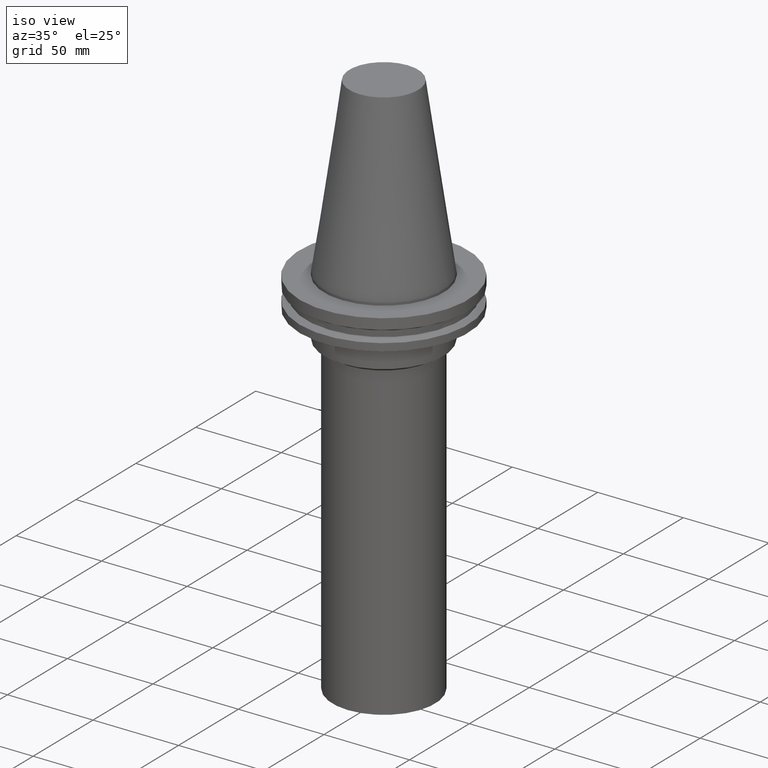
[diagram: clean part render]
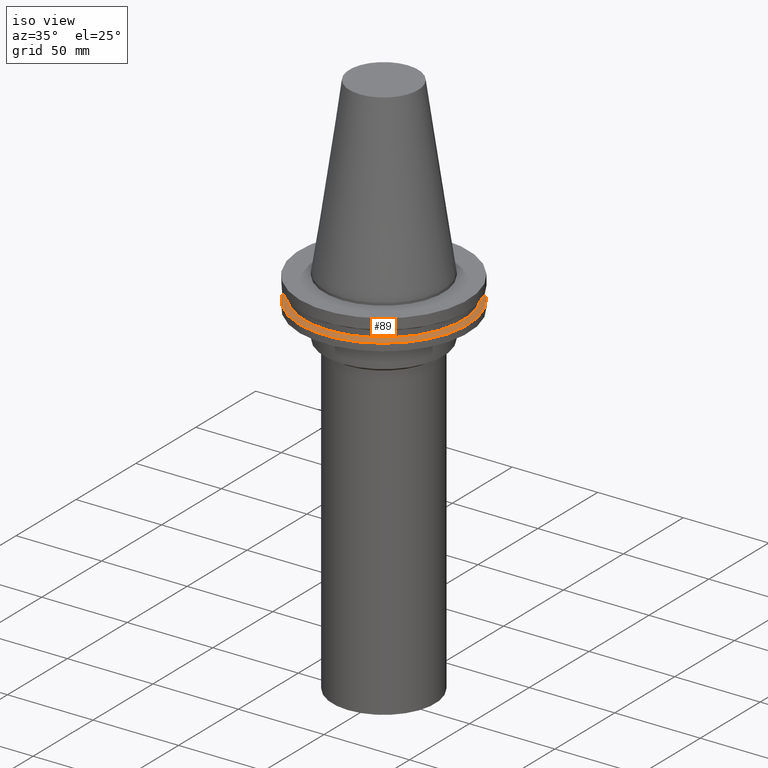
[diagram: same view with one face highlighted and labeled with its STEP entity id]
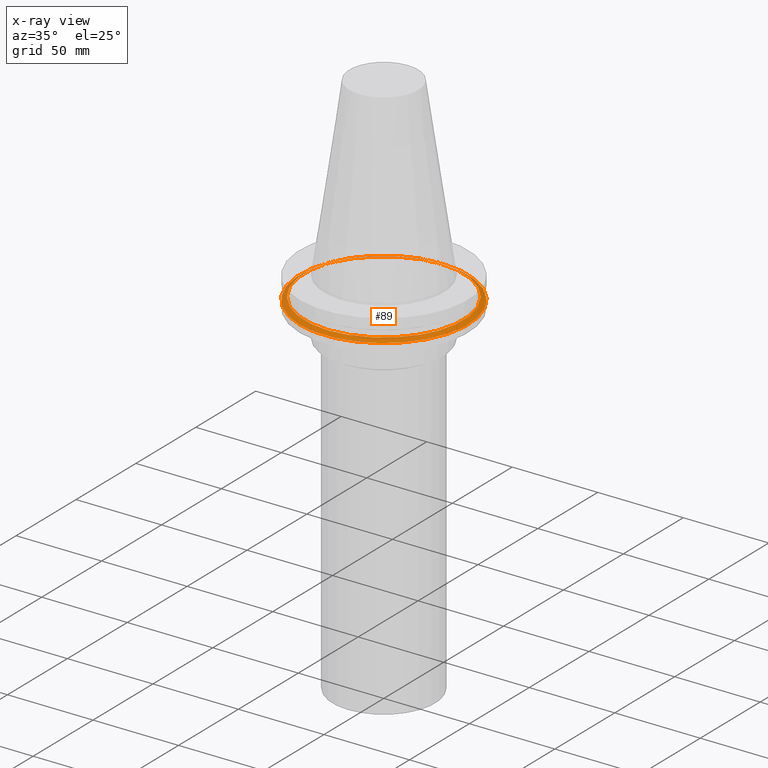
[diagram: x-ray of the same camera — body ghosted, the highlighted face saturated]
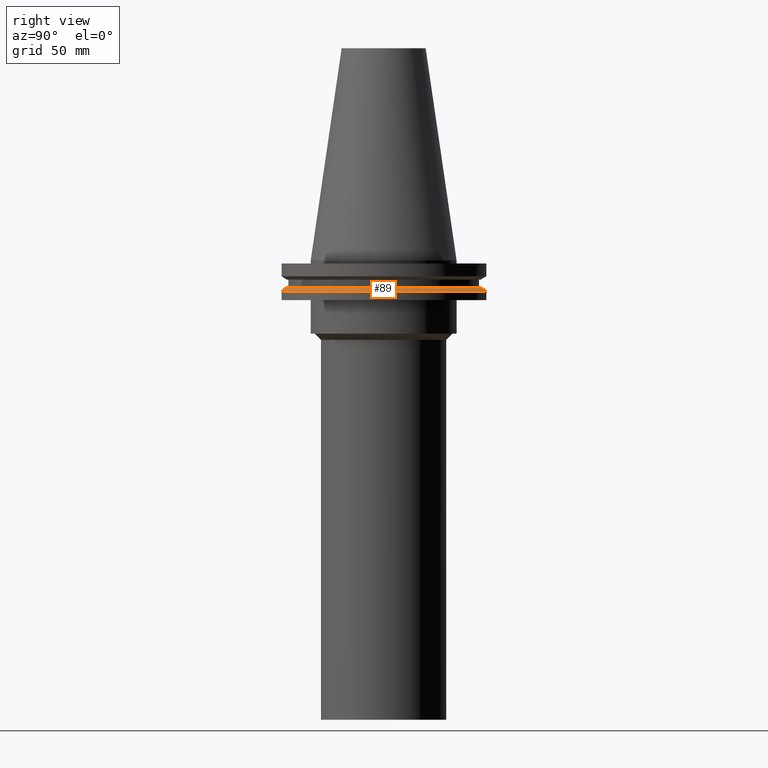
[diagram: same view with one face highlighted and labeled with its STEP entity id]
A machine part, iso view. The second image highlights one B-rep face of the part: STEP entity #89.
The next image is the same camera in x-ray: the body ghosted, the highlighted face saturated — about 3% of this face is hidden behind the body in this view.
A second angle (right view) of the same face is appended — the face is thin or edge-on in the first view.
In plain terms, the highlighted conical surface has half-angle 60 deg.
Its self-contained STEP definition (entity closure, byte-faithful):
#89=ADVANCED_FACE('Unnamed[1]',(#206,#207),#208,.T.);
#105=EDGE_CURVE('Unnamed[1]',#232,#232,#233,.T.);
#135=EDGE_CURVE('Unnamed[1]',#280,#280,#281,.T.);
#206=FACE_BOUND('',#357,.T.);
#207=FACE_BOUND('',#358,.T.);
#208=CONICAL_SURFACE('',#359,47.8225292269259,1.04719755119659);
#232=VERTEX_POINT('',#390);
#233=CIRCLE('',#391,49.2124999999999);
#280=VERTEX_POINT('',#450);
#281=CIRCLE('',#451,46.4325584538519);
#357=EDGE_LOOP('',(#518));
#358=EDGE_LOOP('',(#519));
#359=AXIS2_PLACEMENT_3D('',#520,#521,#522);
#390=CARTESIAN_POINT('',(8.96747618675648E-016,49.2124999999999,-14.645));
#391=AXIS2_PLACEMENT_3D('',#547,#548,#549);
#450=CARTESIAN_POINT('',(7.98469713044071E-016,46.4325584538519,-13.04));
#451=AXIS2_PLACEMENT_3D('',#601,#602,#603);
#518=ORIENTED_EDGE('',*,*,#105,.F.);
#519=ORIENTED_EDGE('',*,*,#135,.T.);
#520=CARTESIAN_POINT('',(8.47608665859862E-016,-1.81107439480288E-014,-13.8425));
#521=DIRECTION('',(6.12323399573677E-017,4.3287824611582E-016,-1.0));
#522=DIRECTION('',(-3.1333300657083E-032,1.0,4.3287824611582E-016));
#547=CARTESIAN_POINT('',(8.9674761867565E-016,-1.77633591555209E-014,-14.645));
#548=DIRECTION('',(6.12323399573677E-017,4.32878246115774E-016,-1.0));
#549=DIRECTION('',(-3.13333006570746E-032,1.0,4.32878246115774E-016));
#601=CARTESIAN_POINT('',(7.98469713044074E-016,-1.84581287405367E-014,-13.04));
#602=DIRECTION('',(6.12323399573677E-017,4.32878246115729E-016,-1.0));
#603=DIRECTION('',(-3.13333006570765E-032,1.0,4.32878246115729E-016));